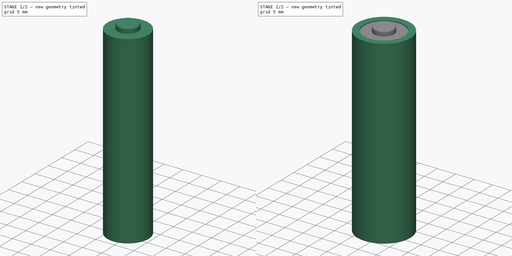
[diagram: build sequence overview — one tinted view per stage of 2, left to right]
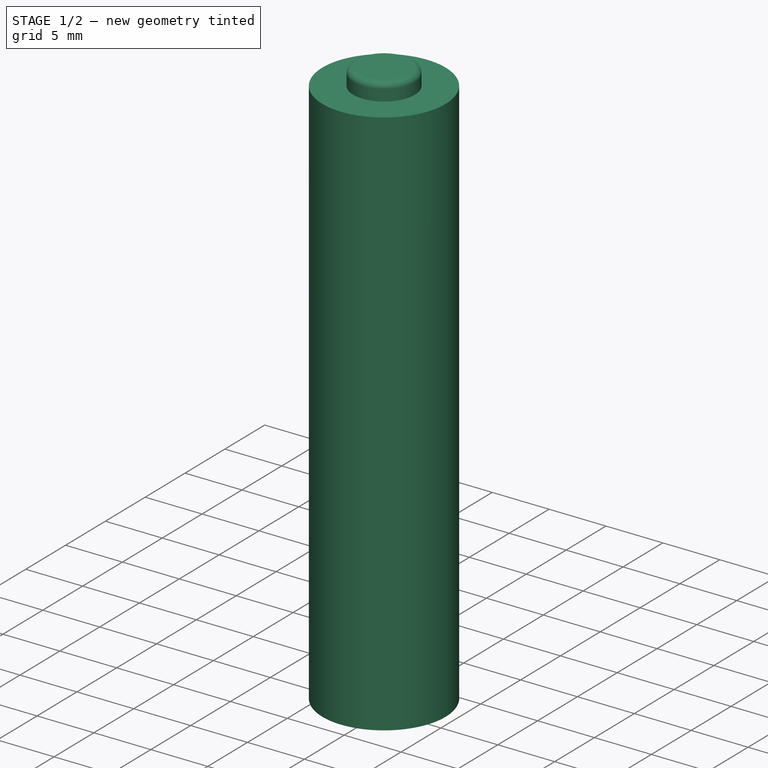
[diagram: stage 1 of 2 — iso view after this stage's code; geometry added in this stage tinted green]
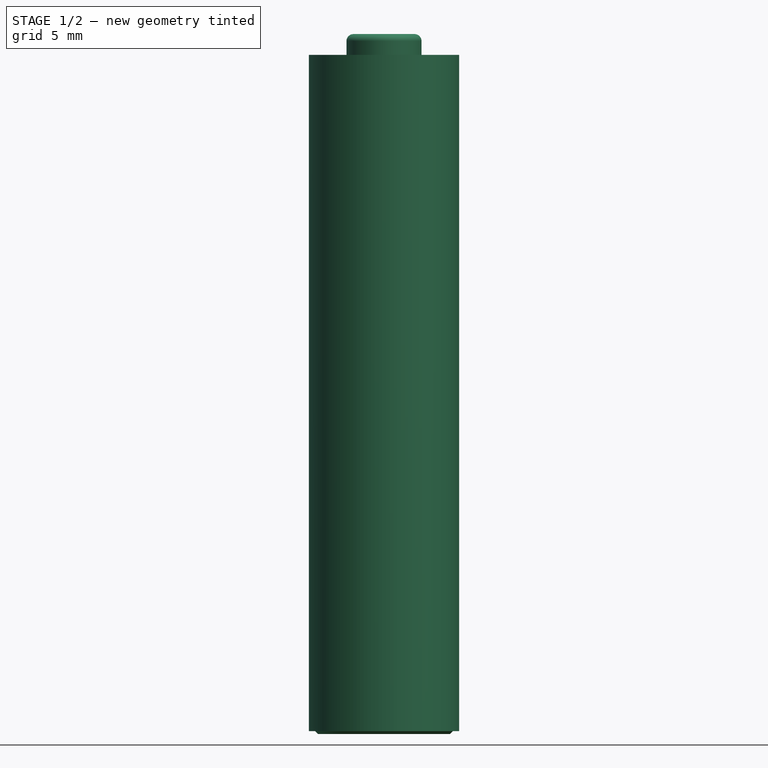
[diagram: stage 1 of 2 — front view after this stage's code; geometry added in this stage tinted green]
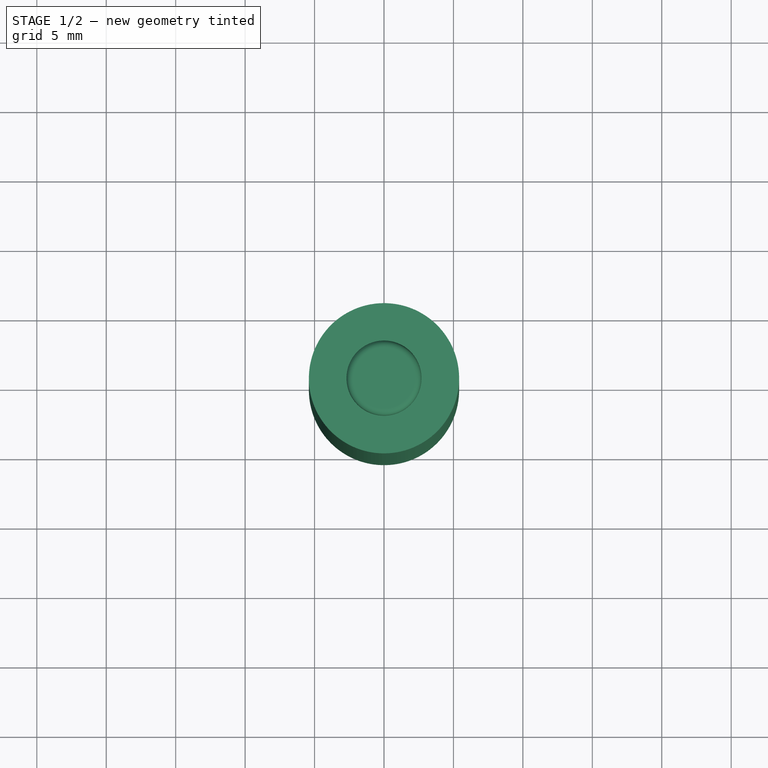
[diagram: stage 1 of 2 — top view after this stage's code; geometry added in this stage tinted green]
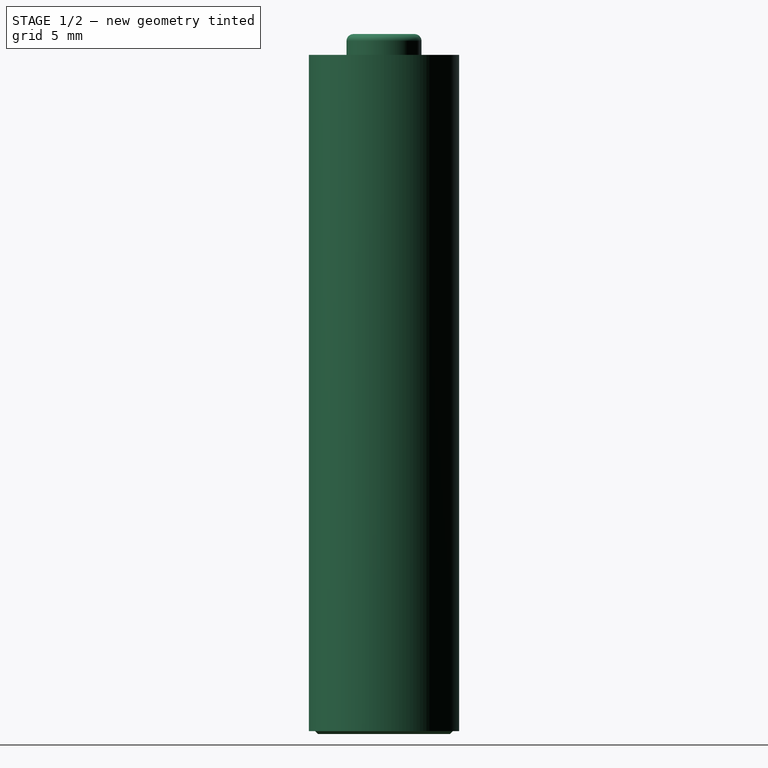
[diagram: stage 1 of 2 — right view after this stage's code; geometry added in this stage tinted green]
FCSTD DOCUMENT  (FreeCAD 0.21R33771 (Git))
Label: battery-AA
License: All rights reserved
LicenseURL: http://en.wikipedia.org/wiki/All_rights_reserved
objects: Sketcher::SketchObject×2, PartDesign::Revolution×2, Spreadsheet::Sheet×1, PartDesign::Body×1, App::Part×1
note: 7 computed .brp shape members not serialized (recipe doc carries the construction recipe); baked Part::Feature solids carry a one-line shape summary decoded from their .brp

FEATURE [Spreadsheet::Sheet] Spreadsheet
  cells = A1='Outer body diameter; B1(BodyDiameter)==14.3 mm; C1='13.5–14.5 mm; A2='Total length including terminals; B2(BodyLength)==50.4 mm; C2='49.2–50.5 mm; A3='Shell inner diameter; B3(ShellInnerDiameter)==BodyDiameter - 3.5 mm; C3='Must be less than outer body diameter
FEATURE [Sketcher::SketchObject] Sketch
  FullyConstrained = true
  MapMode = 5
  Placement = pos=(0,0,0) rot=(1,0,0;1.5708rad)
  Support = -> [XZ_Plane001]
  expr: Constraints[19] = Spreadsheet.BodyLength
  expr: Constraints[21] = 5.4 mm / 2
  expr: Constraints[22] = Spreadsheet.ShellInnerDiameter / 2 + 0.01 mm
  expr: Constraints[23] = 9.5 mm / 2
  sketch-geometry (9):
    g0: LineSegment StartX=0 StartY=0 StartZ=0 EndX=4.75 EndY=0 EndZ=0
    g1: LineSegment StartX=4.75 StartY=0 StartZ=0 EndX=4.95 EndY=0.2 EndZ=0
    g2: LineSegment StartX=4.95 StartY=0.2 StartZ=0 EndX=5.41 EndY=0.2 EndZ=0
    g3: LineSegment StartX=5.41 StartY=0.2 StartZ=0 EndX=5.41 EndY=48.9 EndZ=0
    g4: LineSegment StartX=5.41 StartY=48.9 StartZ=0 EndX=2.7 EndY=48.9 EndZ=0
    g5: LineSegment StartX=2.7 StartY=48.9 StartZ=0 EndX=2.7 EndY=49.9 EndZ=0
    g6: LineSegment StartX=0 StartY=50.4 StartZ=0 EndX=2.2 EndY=50.4 EndZ=0
    g7: ArcOfCircle CenterX=2.2 CenterY=49.9 CenterZ=0 NormalX=0 NormalY=0 NormalZ=1 AngleXU=0 Radius=0.5 StartAngle=0 EndAngle=1.5708
    g8: LineSegment StartX=0 StartY=50.4 StartZ=0 EndX=0 EndY=0 EndZ=0
  constraints (27):
    c: Coincident(g0,g-1)
    c: PointOnObject(g0,g-1)
    c: Coincident(g0,g1)
    c: Coincident(g1,g2)
    c: Horizontal(g2)
    c: Coincident(g2,g3)
    c: Vertical(g3)
    c: Coincident(g3,g4)
    c: Horizontal(g4)
    c: Coincident(g4,g5)
    c: Vertical(g5)
    c: PointOnObject(g6,g-2)
    c: Horizontal(g6)
    c: Coincident(g7,g6)
    c: Vertical(g7,g6)
    c: Horizontal(g7,g7)
    c: Coincident(g5,g7)
    c: Coincident(g8,g6)
    c: Coincident(g8,g0)
    c: DistanceY(g0,g6) = 50.4
    c: DistanceY(g3,g6) = 1.5
    c: DistanceX(g6,g4) = 2.7
    c: DistanceX(g6,g3) = 5.41
    c: DistanceX(g0,g0) = 4.75
    c: Angle(g1,g-1) = 2.35619
    c: DistanceY(g0,g2) = 0.2
    c: DistanceY(g7,g6) = 0.5
FEATURE [PartDesign::Revolution] Revolution  label="Terminals"
  Angle = 360
  Axis = (0,2e-16,1)
  Base = (0,0,0)
  Placement = pos=(0,0,0) rot=(1,0,0;1.5708rad)
  Profile = -> Sketch
  ReferenceAxis = -> Sketch [V_Axis]
  Reversed = true
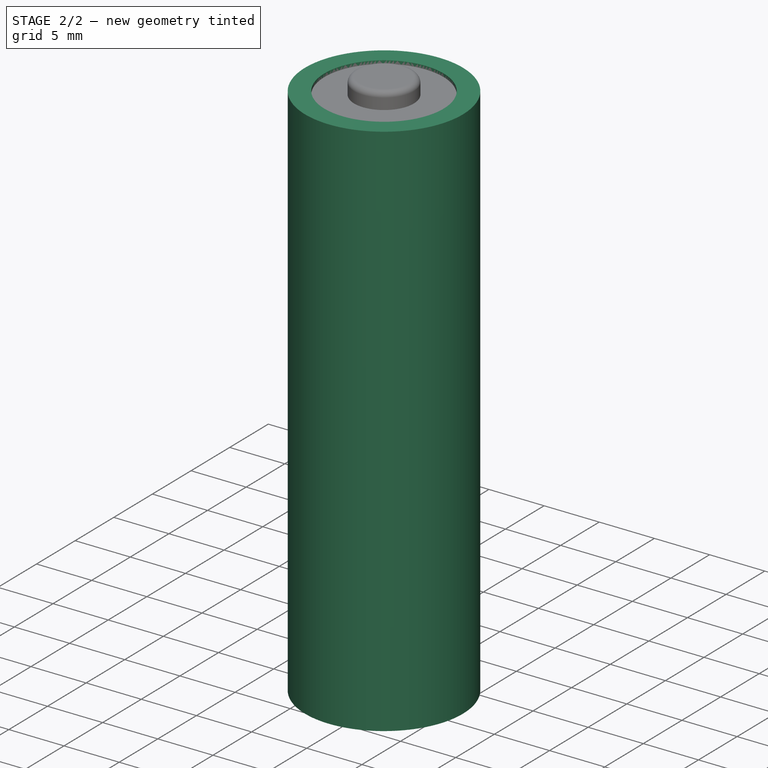
[diagram: stage 2 of 2 — iso view after this stage's code; geometry added in this stage tinted green]
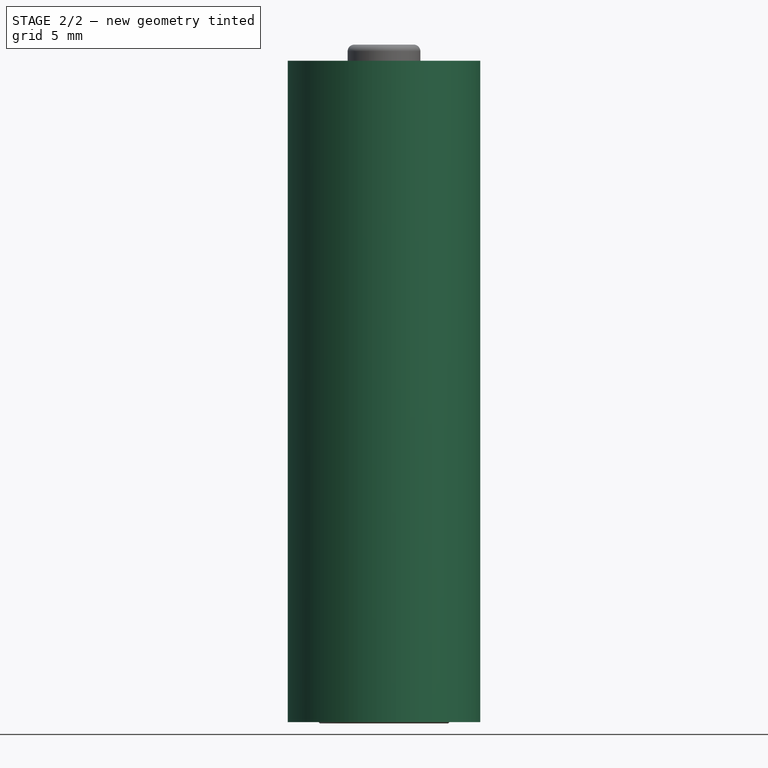
[diagram: stage 2 of 2 — front view after this stage's code; geometry added in this stage tinted green]
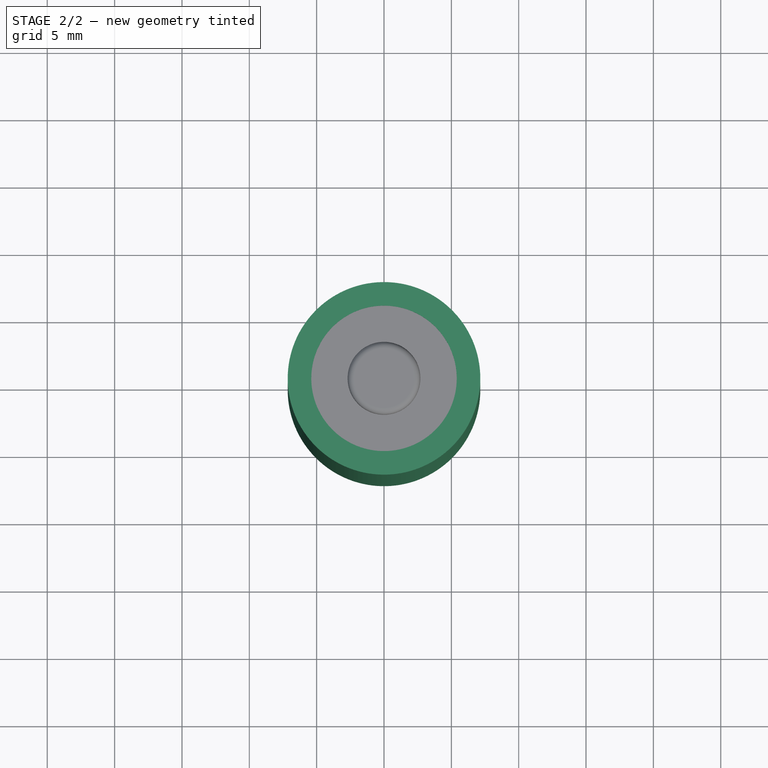
[diagram: stage 2 of 2 — top view after this stage's code; geometry added in this stage tinted green]
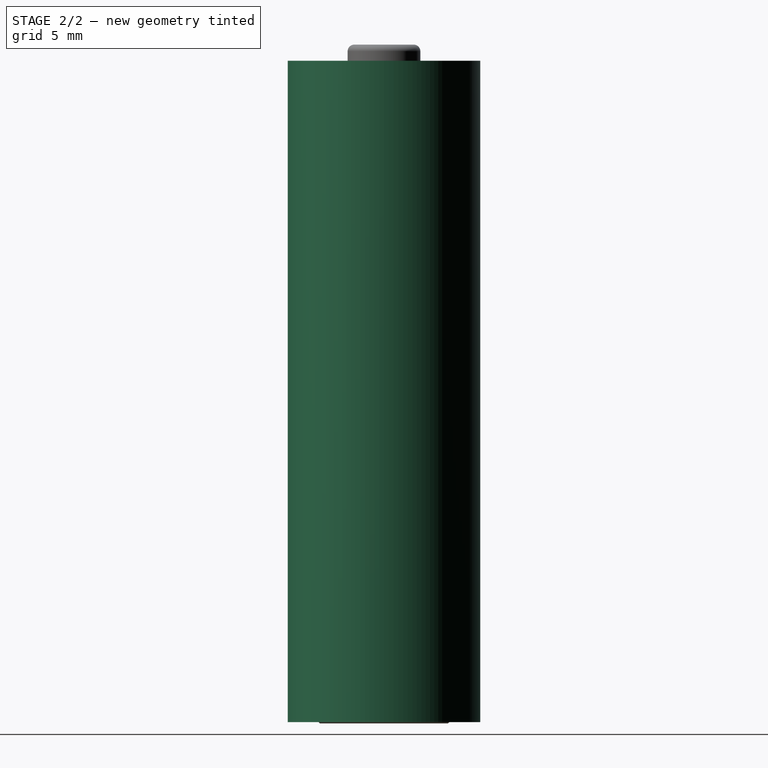
[diagram: stage 2 of 2 — right view after this stage's code; geometry added in this stage tinted green]
FEATURE [Sketcher::SketchObject] Sketch001
  FullyConstrained = true
  MapMode = 5
  Placement = pos=(0,0,0) rot=(1,0,0;1.5708rad)
  Support = -> [XZ_Plane001]
  expr: Constraints[10] = Spreadsheet.BodyLength - 1.2 mm
  expr: Constraints[11] = Spreadsheet.ShellInnerDiameter / 2
  expr: Constraints[8] = Spreadsheet.BodyDiameter / 2
  sketch-geometry (4):
    g0: LineSegment StartX=5.4 StartY=49.2 StartZ=0 EndX=7.15 EndY=49.2 EndZ=0
    g1: LineSegment StartX=7.15 StartY=49.2 StartZ=0 EndX=7.15 EndY=0.1 EndZ=0
    g2: LineSegment StartX=7.15 StartY=0.1 StartZ=0 EndX=5.4 EndY=0.1 EndZ=0
    g3: LineSegment StartX=5.4 StartY=0.1 StartZ=0 EndX=5.4 EndY=49.2 EndZ=0
  constraints (12):
    c: Coincident(g0,g1)
    c: Coincident(g1,g2)
    c: Coincident(g2,g3)
    c: Coincident(g3,g0)
    c: Horizontal(g0)
    c: Horizontal(g2)
    c: Vertical(g1)
    c: Vertical(g3)
    c: DistanceX(g-1,g0) = 7.15
    c: DistanceY(g-1,g1) = 0.1
    c: DistanceY(g-1,g0) = 49.2
    c: DistanceX(g-1,g0) = 5.4
FEATURE [PartDesign::Revolution] Revolution001  label="Shell"
  Angle = 360
  Axis = (0,2e-16,1)
  Base = (0,0,0)
  BaseFeature = -> Revolution
  Placement = pos=(0,0,0) rot=(1,0,0;1.5708rad)
  Profile = -> Sketch001
  ReferenceAxis = -> Sketch001 [V_Axis]
  Reversed = true
FEATURE [PartDesign::Body] Body
  Group = -> [Sketch,Revolution,Sketch001,Revolution001]
  Origin = -> Origin001
  Tip = -> Revolution001
FEATURE [App::Part] Part  label="Battery AA"
  Group = -> [Body]
  Origin = -> Origin
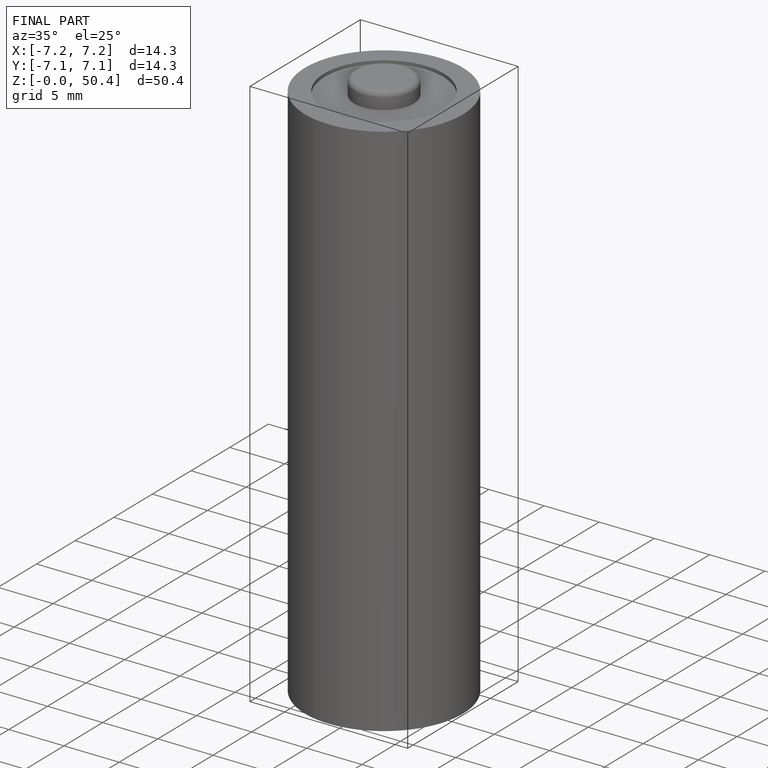
[diagram: finished part — iso view with bounding-box wireframe]
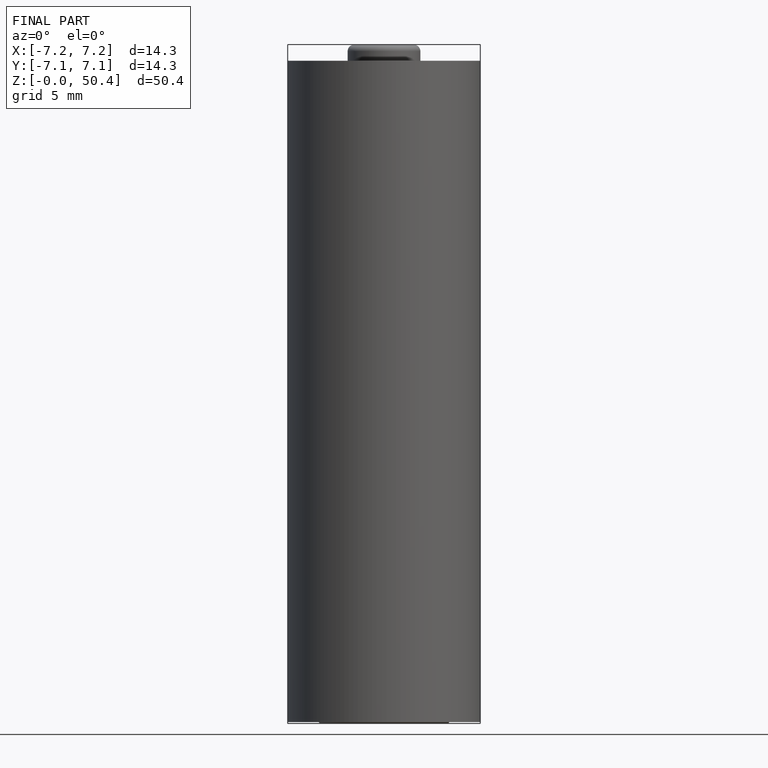
[diagram: finished part — front view with bounding-box wireframe]
